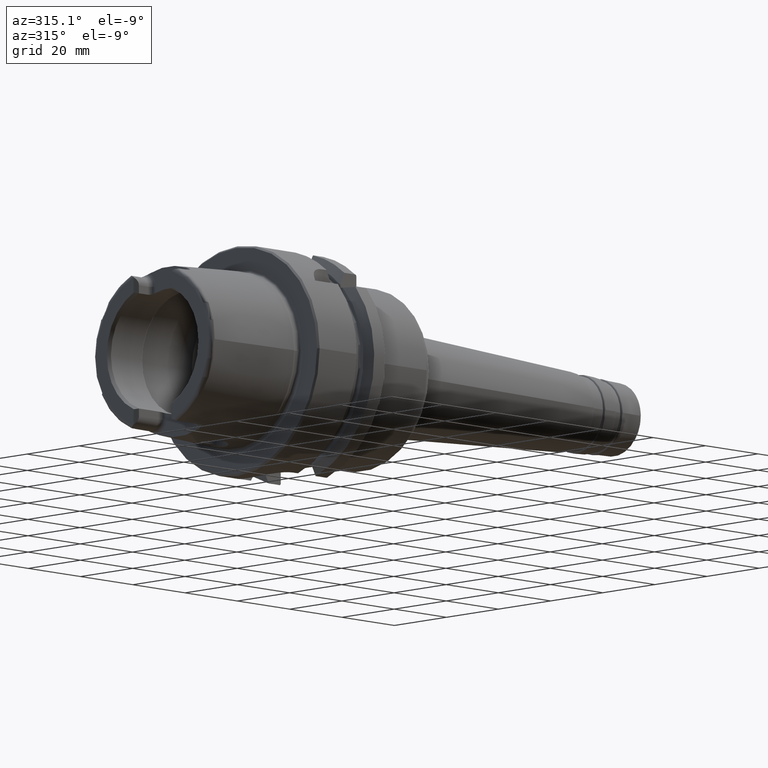
[diagram: clean part render]
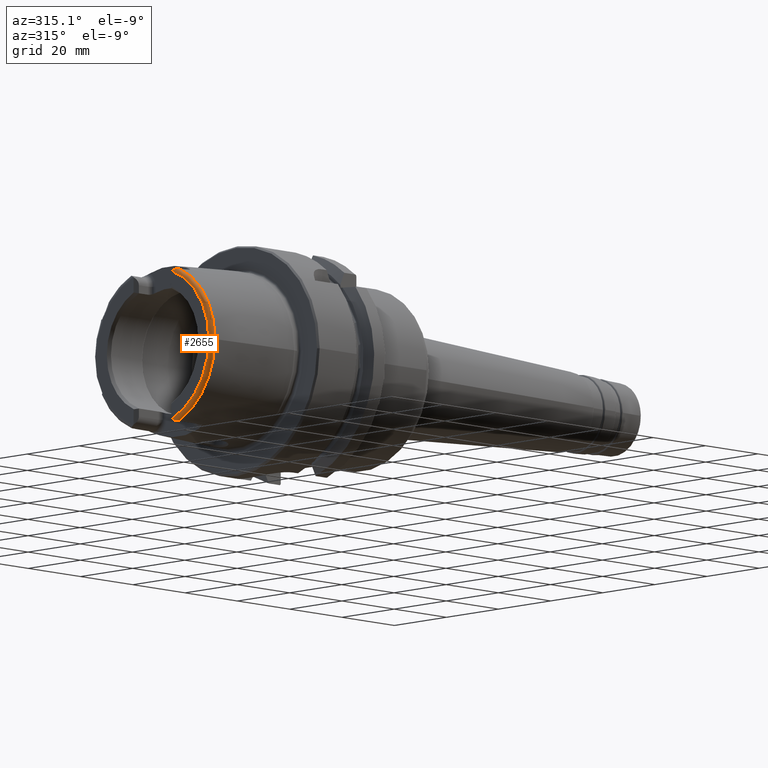
[diagram: same view with one face highlighted and labeled with its STEP entity id]
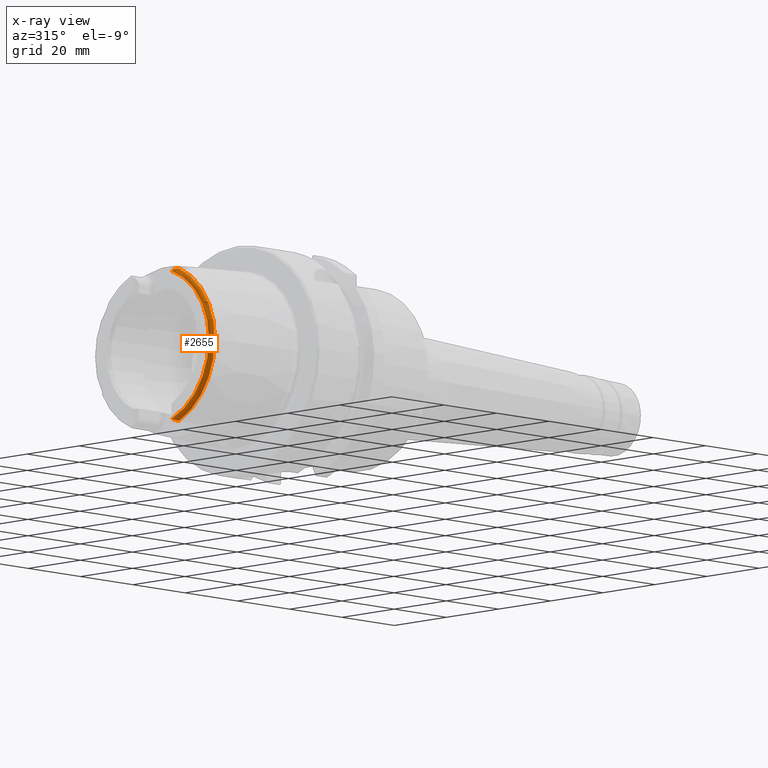
[diagram: x-ray of the same camera — body ghosted, the highlighted face saturated]
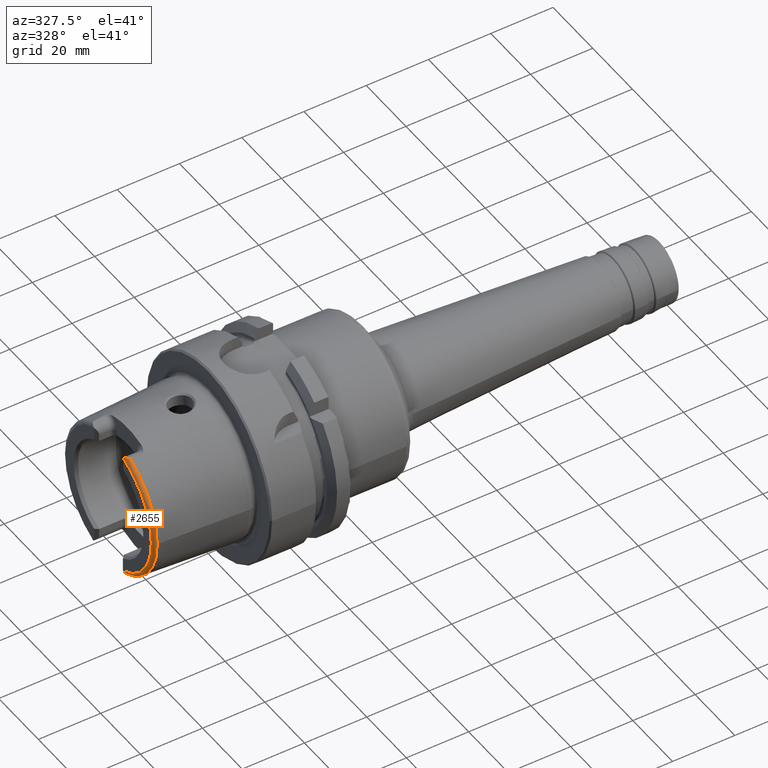
[diagram: same view with one face highlighted and labeled with its STEP entity id]
A machine part, auxiliary view. The second image highlights one B-rep face of the part: STEP entity #2655.
The next image is the same camera in x-ray: the body ghosted, the highlighted face saturated — about 0% of this face is hidden behind the body in this view.
A second angle (auxiliary view) of the same face is appended — the face is thin or edge-on in the first view.
In plain terms, the highlighted toroidal blend (fillet) surface has major radius 21.576 mm and minor (blend) radius 1.2 mm.
Its self-contained STEP definition (entity closure, byte-faithful):
#33=B_SPLINE_CURVE_WITH_KNOTS('',3,(#4280,#4281,#4282,#4283,#4284,#4285,
#4286,#4287,#4288,#4289,#4290,#4291),.UNSPECIFIED.,.F.,.F.,(4,2,2,2,2,4),
(-0.440016298339346,-0.413819168091726,-0.38684223146412,-0.314176502280688,
-0.242048966230796,-0.191409762337977),.UNSPECIFIED.);
#88=B_SPLINE_CURVE_WITH_KNOTS('',3,(#5473,#5474,#5475,#5476,#5477,#5478,
#5479,#5480,#5481,#5482,#5483,#5484),.UNSPECIFIED.,.F.,.F.,(4,2,2,2,2,4),
(-0.196612183526961,-0.162100751777108,-0.0988537843219417,-0.0492481970353068,
-0.0201985054494333,0.),.UNSPECIFIED.);
#549=FACE_OUTER_BOUND('',#692,.T.);
#692=EDGE_LOOP('',(#2342,#2343,#2344,#2345,#2346));
#833=CIRCLE('',#2851,21.5760400159857);
#843=CIRCLE('',#2876,22.7745368271334);
#847=CIRCLE('',#2880,22.7745368271334);
#1057=VERTEX_POINT('',#4206);
#1058=VERTEX_POINT('',#4208);
#1074=VERTEX_POINT('',#4279);
#1090=VERTEX_POINT('',#4482);
#1091=VERTEX_POINT('',#4484);
#1382=EDGE_CURVE('',#1058,#1057,#833,.T.);
#1403=EDGE_CURVE('',#1074,#1058,#33,.T.);
#1424=EDGE_CURVE('',#1090,#1091,#843,.T.);
#1437=EDGE_CURVE('',#1074,#1090,#847,.T.);
#1612=EDGE_CURVE('',#1057,#1091,#88,.T.);
#2342=ORIENTED_EDGE('',*,*,#1403,.T.);
#2343=ORIENTED_EDGE('',*,*,#1382,.T.);
#2344=ORIENTED_EDGE('',*,*,#1612,.T.);
#2345=ORIENTED_EDGE('',*,*,#1424,.F.);
#2346=ORIENTED_EDGE('',*,*,#1437,.F.);
#2540=TOROIDAL_SURFACE('',#2998,21.5760400159857,1.2);
#2655=ADVANCED_FACE('',(#549),#2540,.T.);
#2851=AXIS2_PLACEMENT_3D('',#4209,#3394,#3395);
#2876=AXIS2_PLACEMENT_3D('',#4485,#3462,#3463);
#2880=AXIS2_PLACEMENT_3D('',#4608,#3470,#3471);
#2998=AXIS2_PLACEMENT_3D('',#5472,#3769,#3770);
#3394=DIRECTION('center_axis',(1.,0.,0.));
#3395=DIRECTION('ref_axis',(0.,0.,-1.));
#3462=DIRECTION('center_axis',(1.,0.,0.));
#3463=DIRECTION('ref_axis',(0.,0.,-1.));
#3470=DIRECTION('center_axis',(1.,0.,0.));
#3471=DIRECTION('ref_axis',(0.,0.,-1.));
#3769=DIRECTION('center_axis',(1.,0.,0.));
#3770=DIRECTION('ref_axis',(0.,0.,-1.));
#4206=CARTESIAN_POINT('',(-32.,-7.39118810947246,-20.2705658801576));
#4208=CARTESIAN_POINT('',(-32.,-7.39118810947246,20.2705658801576));
#4209=CARTESIAN_POINT('Origin',(-32.,0.,0.));
#4279=CARTESIAN_POINT('',(-30.8600449304182,-9.1175788960984,20.8698175067219));
#4280=CARTESIAN_POINT('Ctrl Pts',(-30.8600449304182,-9.11757889609839,20.8698175067219));
#4281=CARTESIAN_POINT('Ctrl Pts',(-30.9283853966267,-9.1092413596916,20.8697236423942));
#4282=CARTESIAN_POINT('Ctrl Pts',(-30.9933437959442,-9.08709005778456,20.8694809526083));
#4283=CARTESIAN_POINT('Ctrl Pts',(-31.1177754091763,-9.02396510410894,20.8674193162914));
#4284=CARTESIAN_POINT('Ctrl Pts',(-31.1770034834694,-8.98246838908717,20.8654817144325));
#4285=CARTESIAN_POINT('Ctrl Pts',(-31.3775872414353,-8.81520504288704,20.8530880014962));
#4286=CARTESIAN_POINT('Ctrl Pts',(-31.521057678942,-8.63827412284131,20.8318261586711));
#4287=CARTESIAN_POINT('Ctrl Pts',(-31.7694065050575,-8.23592790359805,20.7289177452773));
#4288=CARTESIAN_POINT('Ctrl Pts',(-31.8689043999789,-8.02084936775806,20.6497346714256));
#4289=CARTESIAN_POINT('Ctrl Pts',(-31.9746332690681,-7.66799906728034,20.4648878758955));
#4290=CARTESIAN_POINT('Ctrl Pts',(-32.,-7.52524774054413,20.3739549886328));
#4291=CARTESIAN_POINT('Ctrl Pts',(-32.,-7.39118810947247,20.2705658801576));
#4482=CARTESIAN_POINT('',(-30.8600449304182,-22.7745368271334,-2.78907636274124E-15));
#4484=CARTESIAN_POINT('',(-30.8600449304182,-9.1175788960984,-20.8698175067219));
#4485=CARTESIAN_POINT('Origin',(-30.8600449304182,0.,0.));
#4608=CARTESIAN_POINT('Origin',(-30.8600449304182,0.,0.));
#5472=CARTESIAN_POINT('Origin',(-30.8,0.,0.));
#5473=CARTESIAN_POINT('Ctrl Pts',(-32.,-7.39118810947247,-20.2705658801576));
#5474=CARTESIAN_POINT('Ctrl Pts',(-32.,-7.51057646079925,-20.3626402436877));
#5475=CARTESIAN_POINT('Ctrl Pts',(-31.9798323447024,-7.63713759811651,-20.4450895592776));
#5476=CARTESIAN_POINT('Ctrl Pts',(-31.8795915966629,-8.00411514663101,-20.6460540241957));
#5477=CARTESIAN_POINT('Ctrl Pts',(-31.7662291944519,-8.24534617868917,-20.7330636375648));
#5478=CARTESIAN_POINT('Ctrl Pts',(-31.5260503396065,-8.62641311167603,-20.8272571305318));
#5479=CARTESIAN_POINT('Ctrl Pts',(-31.4080214744472,-8.77500391332017,-20.8477181028241));
#5480=CARTESIAN_POINT('Ctrl Pts',(-31.2168511506693,-8.95347341138424,-20.8640491182849));
#5481=CARTESIAN_POINT('Ctrl Pts',(-31.1371144343332,-9.01480627610083,-20.8671499279665));
#5482=CARTESIAN_POINT('Ctrl Pts',(-30.9904836833853,-9.08806135889972,-20.8694907892639));
#5483=CARTESIAN_POINT('Ctrl Pts',(-30.9268776870879,-9.10942530024495,-20.8697257132045));
#5484=CARTESIAN_POINT('Ctrl Pts',(-30.8600449304182,-9.11757889609838,-20.8698175067219));